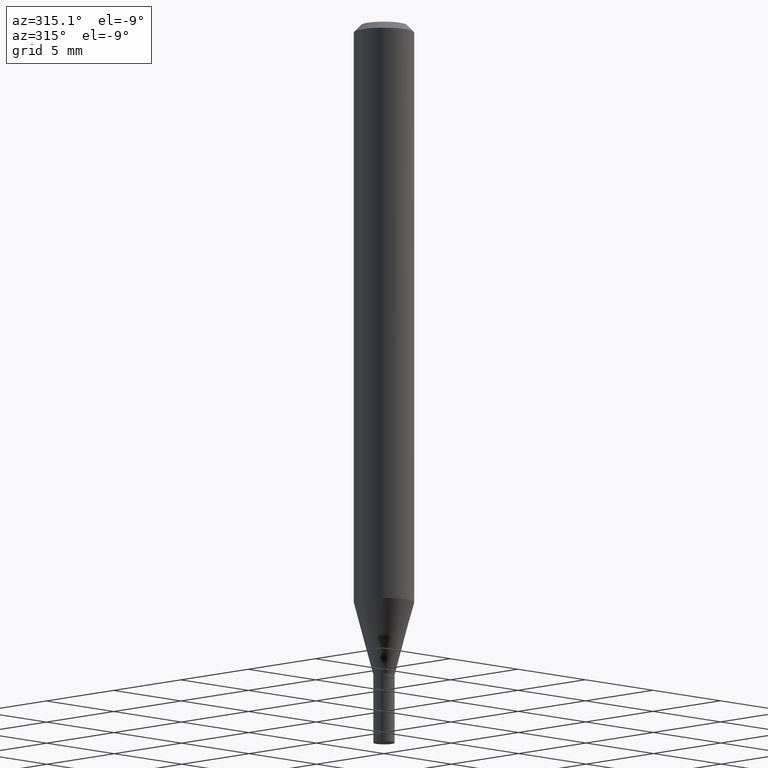
[diagram: clean part render]
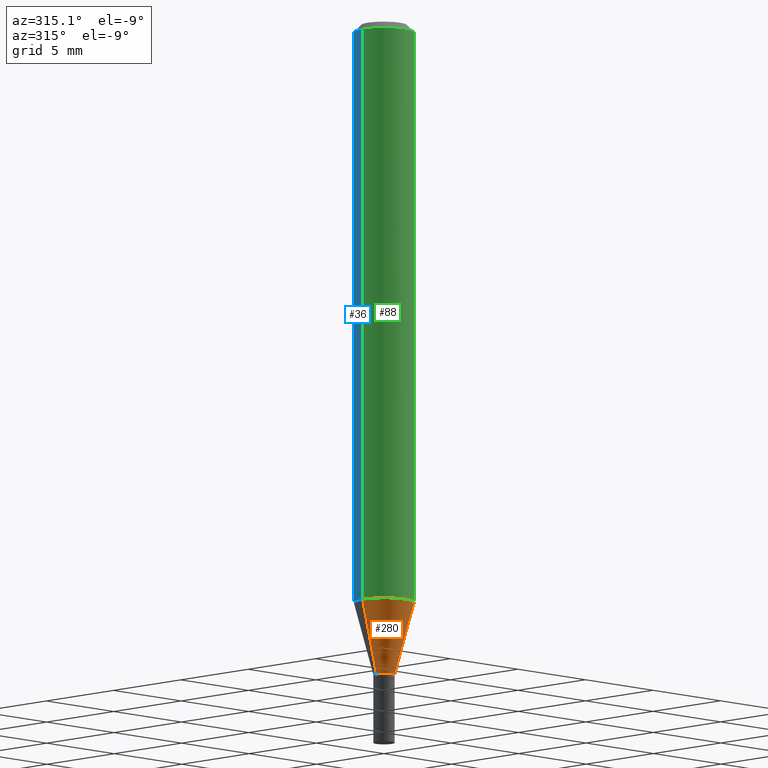
[diagram: same view with three faces highlighted in distinct colors, each labeled with its STEP entity id]
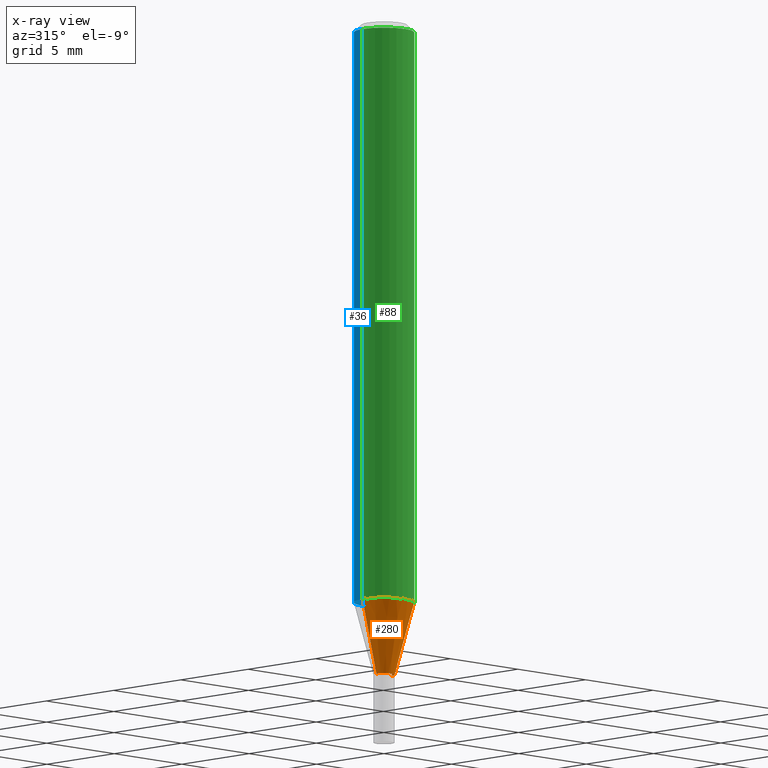
[diagram: x-ray of the same camera — body ghosted, the three highlighted faces saturated]
A machine part, auxiliary view with three faces highlighted in distinct colors.
The next image is the same camera in x-ray (body ghosted, the three faces saturated) — at least one of them is partly hidden behind the body in this view.
Their STEP definitions:

[orange] entity #280 — the highlighted conical surface has half-angle 15 deg.
#6 = CARTESIAN_POINT ( 'NONE',  ( 2.951318778562602676E-29, -4.213701035264222282E-15, -1.206851942293460711 ) ) ;
#9 = VECTOR ( 'NONE', #84, 39.37007874015747433 ) ;
#31 = DIRECTION ( 'NONE',  ( 1.000000000000000000, -6.982962677686269866E-15, 0.000000000000000000 ) ) ;
#32 = AXIS2_PLACEMENT_3D ( 'NONE', #214, #350, #31 ) ;
#38 = CIRCLE ( 'NONE', #256, 0.02199999999999992240 ) ;
#61 = ORIENTED_EDGE ( 'NONE', *, *, #210, .T. ) ;
#81 = LINE ( 'NONE', #396, #9 ) ;
#84 = DIRECTION ( 'NONE',  ( -0.2588190451025213501, 5.211531920934551042E-15, 0.9659258262890682012 ) ) ;
#86 = CARTESIAN_POINT ( 'NONE',  ( 0.02199999999999992240, -4.895056837058089278E-15, -1.358000000000000096 ) ) ;
#87 = CARTESIAN_POINT ( 'NONE',  ( 3.320946638799415978E-29, -4.741431658148991442E-15, -1.358000000000000096 ) ) ;
#92 = EDGE_LOOP ( 'NONE', ( #365, #61, #97, #343 ) ) ;
#95 = DIRECTION ( 'NONE',  ( 0.2588190451025213501, 1.565188264969621968E-15, 0.9659258262890682012 ) ) ;
#96 = EDGE_CURVE ( 'NONE', #440, #463, #437, .T. ) ;
#97 = ORIENTED_EDGE ( 'NONE', *, *, #96, .T. ) ;
#103 = DIRECTION ( 'NONE',  ( -2.445468806185136597E-29, 3.491481338843145583E-15, 1.000000000000000000 ) ) ;
#116 = VECTOR ( 'NONE', #95, 39.37007874015747433 ) ;
#143 = VERTEX_POINT ( 'NONE', #353 ) ;
#149 = CARTESIAN_POINT ( 'NONE',  ( -0.06250000000000000000, -3.769611825414159666E-15, -1.206851942293460711 ) ) ;
#153 = DIRECTION ( 'NONE',  ( 1.000000000000000000, -6.982962677686270655E-15, 0.000000000000000000 ) ) ;
#162 = CONICAL_SURFACE ( 'NONE', #32, 0.02199999999999992240, 0.2617993877991500740 ) ;
#187 = AXIS2_PLACEMENT_3D ( 'NONE', #6, #103, #153 ) ;
#189 = DIRECTION ( 'NONE',  ( -2.445468806185136597E-29, 3.491481338843145583E-15, 1.000000000000000000 ) ) ;
#203 = EDGE_CURVE ( 'NONE', #143, #262, #81, .T. ) ;
#204 = CARTESIAN_POINT ( 'NONE',  ( 0.02199999999999992240, -4.895056837058089278E-15, -1.358000000000000096 ) ) ;
#210 = EDGE_CURVE ( 'NONE', #143, #440, #38, .T. ) ;
#214 = CARTESIAN_POINT ( 'NONE',  ( 3.320946638799415978E-29, -4.741431658148991442E-15, -1.358000000000000096 ) ) ;
#256 = AXIS2_PLACEMENT_3D ( 'NONE', #87, #189, #368 ) ;
#262 = VERTEX_POINT ( 'NONE', #149 ) ;
#280 = ADVANCED_FACE ( 'NONE', ( #395 ), #162, .T. ) ;
#312 = CARTESIAN_POINT ( 'NONE',  ( 0.06250000000000000000, -4.650136202619614741E-15, -1.206851942293460711 ) ) ;
#343 = ORIENTED_EDGE ( 'NONE', *, *, #380, .F. ) ;
#350 = DIRECTION ( 'NONE',  ( -2.445468806185136597E-29, 3.491481338843145583E-15, 1.000000000000000000 ) ) ;
#353 = CARTESIAN_POINT ( 'NONE',  ( -0.02199999999999992240, -4.177362040847964858E-15, -1.358000000000000096 ) ) ;
#365 = ORIENTED_EDGE ( 'NONE', *, *, #203, .F. ) ;
#368 = DIRECTION ( 'NONE',  ( 1.000000000000000000, -6.982962677686269866E-15, 0.000000000000000000 ) ) ;
#380 = EDGE_CURVE ( 'NONE', #262, #463, #410, .T. ) ;
#395 = FACE_OUTER_BOUND ( 'NONE', #92, .T. ) ;
#396 = CARTESIAN_POINT ( 'NONE',  ( -0.02199999999999992240, -4.585112256281770051E-15, -1.358000000000000096 ) ) ;
#410 = CIRCLE ( 'NONE', #187, 0.06250000000000000000 ) ;
#437 = LINE ( 'NONE', #86, #116 ) ;
#440 = VERTEX_POINT ( 'NONE', #204 ) ;
#463 = VERTEX_POINT ( 'NONE', #312 ) ;

[blue] entity #36 — the highlighted cylindrical surface (edge-blend (fillet) strip) has radius 1.5875 mm, axis along (-0, 0, 1).
#15 = DIRECTION ( 'NONE',  ( 1.000000000000000000, -6.982962677686266711E-15, 0.000000000000000000 ) ) ;
#36 = ADVANCED_FACE ( 'NONE', ( #202 ), #168, .T. ) ;
#49 = DIRECTION ( 'NONE',  ( -2.445468806185136597E-29, 3.491481338843145583E-15, 1.000000000000000000 ) ) ;
#62 = CARTESIAN_POINT ( 'NONE',  ( 0.000000000000000000, 0.000000000000000000, 0.000000000000000000 ) ) ;
#77 = CARTESIAN_POINT ( 'NONE',  ( -0.06250000000000000000, 4.440892098500626162E-16, -3.074334431409316114E-30 ) ) ;
#114 = CARTESIAN_POINT ( 'NONE',  ( -0.06250000000000000000, -1.688947417823372262E-15, -0.01499999999999999944 ) ) ;
#118 = DIRECTION ( 'NONE',  ( 1.000000000000000000, -6.982962677686270655E-15, 0.000000000000000000 ) ) ;
#123 = DIRECTION ( 'NONE',  ( -2.445468806185136877E-29, 3.491481338843145188E-15, 1.000000000000000000 ) ) ;
#149 = CARTESIAN_POINT ( 'NONE',  ( -0.06250000000000000000, -3.769611825414159666E-15, -1.206851942293460711 ) ) ;
#155 = DIRECTION ( 'NONE',  ( -2.445468806185136877E-29, 3.491481338843145188E-15, 1.000000000000000000 ) ) ;
#159 = CARTESIAN_POINT ( 'NONE',  ( 3.668203209277705088E-31, -5.237222008264718399E-17, -0.01499999999999999944 ) ) ;
#168 = CYLINDRICAL_SURFACE ( 'NONE', #400, 0.06250000000000000000 ) ;
#172 = EDGE_CURVE ( 'NONE', #252, #375, #229, .T. ) ;
#191 = CARTESIAN_POINT ( 'NONE',  ( 0.06250000000000000000, -4.888073874380388472E-16, -0.01499999999999999944 ) ) ;
#195 = CARTESIAN_POINT ( 'NONE',  ( 2.951318778562602676E-29, -4.213701035264222282E-15, -1.206851942293460711 ) ) ;
#202 = FACE_OUTER_BOUND ( 'NONE', #417, .T. ) ;
#217 = ORIENTED_EDGE ( 'NONE', *, *, #348, .T. ) ;
#219 = LINE ( 'NONE', #77, #351 ) ;
#227 = EDGE_CURVE ( 'NONE', #463, #262, #296, .T. ) ;
#229 = CIRCLE ( 'NONE', #379, 0.06250000000000000000 ) ;
#242 = DIRECTION ( 'NONE',  ( -2.445468806185136597E-29, 3.491481338843145583E-15, 1.000000000000000000 ) ) ;
#252 = VERTEX_POINT ( 'NONE', #191 ) ;
#258 = EDGE_CURVE ( 'NONE', #463, #252, #331, .T. ) ;
#262 = VERTEX_POINT ( 'NONE', #149 ) ;
#265 = ORIENTED_EDGE ( 'NONE', *, *, #172, .F. ) ;
#266 = DIRECTION ( 'NONE',  ( -2.445468806185136597E-29, 3.491481338843145583E-15, 1.000000000000000000 ) ) ;
#296 = CIRCLE ( 'NONE', #346, 0.06250000000000000000 ) ;
#312 = CARTESIAN_POINT ( 'NONE',  ( 0.06250000000000000000, -4.650136202619614741E-15, -1.206851942293460711 ) ) ;
#331 = LINE ( 'NONE', #438, #420 ) ;
#346 = AXIS2_PLACEMENT_3D ( 'NONE', #195, #266, #118 ) ;
#348 = EDGE_CURVE ( 'NONE', #262, #375, #219, .T. ) ;
#351 = VECTOR ( 'NONE', #155, 39.37007874015748143 ) ;
#375 = VERTEX_POINT ( 'NONE', #114 ) ;
#379 = AXIS2_PLACEMENT_3D ( 'NONE', #159, #49, #15 ) ;
#382 = ORIENTED_EDGE ( 'NONE', *, *, #258, .F. ) ;
#400 = AXIS2_PLACEMENT_3D ( 'NONE', #62, #242, #442 ) ;
#417 = EDGE_LOOP ( 'NONE', ( #436, #217, #265, #382 ) ) ;
#420 = VECTOR ( 'NONE', #123, 39.37007874015748143 ) ;
#436 = ORIENTED_EDGE ( 'NONE', *, *, #227, .T. ) ;
#438 = CARTESIAN_POINT ( 'NONE',  ( 0.06250000000000000000, -4.364351673553916694E-16, 3.047610484872459871E-30 ) ) ;
#442 = DIRECTION ( 'NONE',  ( 1.000000000000000000, -6.982962677686266711E-15, 4.876176775795935793E-29 ) ) ;
#463 = VERTEX_POINT ( 'NONE', #312 ) ;

[green] entity #88 — the highlighted cylindrical surface (edge-blend (fillet) strip) has radius 1.5875 mm, axis along (-0, 0, 1).
#6 = CARTESIAN_POINT ( 'NONE',  ( 2.951318778562602676E-29, -4.213701035264222282E-15, -1.206851942293460711 ) ) ;
#39 = CARTESIAN_POINT ( 'NONE',  ( 3.668203209277705088E-31, -5.237222008264718399E-17, -0.01499999999999999944 ) ) ;
#41 = DIRECTION ( 'NONE',  ( -2.445468806185136597E-29, 3.491481338843145583E-15, 1.000000000000000000 ) ) ;
#72 = AXIS2_PLACEMENT_3D ( 'NONE', #39, #41, #183 ) ;
#77 = CARTESIAN_POINT ( 'NONE',  ( -0.06250000000000000000, 4.440892098500626162E-16, -3.074334431409316114E-30 ) ) ;
#78 = CIRCLE ( 'NONE', #72, 0.06250000000000000000 ) ;
#88 = ADVANCED_FACE ( 'NONE', ( #197 ), #372, .T. ) ;
#90 = ORIENTED_EDGE ( 'NONE', *, *, #258, .T. ) ;
#103 = DIRECTION ( 'NONE',  ( -2.445468806185136597E-29, 3.491481338843145583E-15, 1.000000000000000000 ) ) ;
#114 = CARTESIAN_POINT ( 'NONE',  ( -0.06250000000000000000, -1.688947417823372262E-15, -0.01499999999999999944 ) ) ;
#123 = DIRECTION ( 'NONE',  ( -2.445468806185136877E-29, 3.491481338843145188E-15, 1.000000000000000000 ) ) ;
#149 = CARTESIAN_POINT ( 'NONE',  ( -0.06250000000000000000, -3.769611825414159666E-15, -1.206851942293460711 ) ) ;
#152 = EDGE_CURVE ( 'NONE', #375, #252, #78, .T. ) ;
#153 = DIRECTION ( 'NONE',  ( 1.000000000000000000, -6.982962677686270655E-15, 0.000000000000000000 ) ) ;
#155 = DIRECTION ( 'NONE',  ( -2.445468806185136877E-29, 3.491481338843145188E-15, 1.000000000000000000 ) ) ;
#183 = DIRECTION ( 'NONE',  ( 1.000000000000000000, -6.982962677686266711E-15, 0.000000000000000000 ) ) ;
#187 = AXIS2_PLACEMENT_3D ( 'NONE', #6, #103, #153 ) ;
#191 = CARTESIAN_POINT ( 'NONE',  ( 0.06250000000000000000, -4.888073874380388472E-16, -0.01499999999999999944 ) ) ;
#197 = FACE_OUTER_BOUND ( 'NONE', #234, .T. ) ;
#219 = LINE ( 'NONE', #77, #351 ) ;
#234 = EDGE_LOOP ( 'NONE', ( #313, #295, #90, #334 ) ) ;
#246 = AXIS2_PLACEMENT_3D ( 'NONE', #292, #332, #444 ) ;
#252 = VERTEX_POINT ( 'NONE', #191 ) ;
#258 = EDGE_CURVE ( 'NONE', #463, #252, #331, .T. ) ;
#262 = VERTEX_POINT ( 'NONE', #149 ) ;
#292 = CARTESIAN_POINT ( 'NONE',  ( 0.000000000000000000, 0.000000000000000000, 0.000000000000000000 ) ) ;
#295 = ORIENTED_EDGE ( 'NONE', *, *, #380, .T. ) ;
#312 = CARTESIAN_POINT ( 'NONE',  ( 0.06250000000000000000, -4.650136202619614741E-15, -1.206851942293460711 ) ) ;
#313 = ORIENTED_EDGE ( 'NONE', *, *, #348, .F. ) ;
#331 = LINE ( 'NONE', #438, #420 ) ;
#332 = DIRECTION ( 'NONE',  ( -2.445468806185136597E-29, 3.491481338843145583E-15, 1.000000000000000000 ) ) ;
#334 = ORIENTED_EDGE ( 'NONE', *, *, #152, .F. ) ;
#348 = EDGE_CURVE ( 'NONE', #262, #375, #219, .T. ) ;
#351 = VECTOR ( 'NONE', #155, 39.37007874015748143 ) ;
#372 = CYLINDRICAL_SURFACE ( 'NONE', #246, 0.06250000000000000000 ) ;
#375 = VERTEX_POINT ( 'NONE', #114 ) ;
#380 = EDGE_CURVE ( 'NONE', #262, #463, #410, .T. ) ;
#410 = CIRCLE ( 'NONE', #187, 0.06250000000000000000 ) ;
#420 = VECTOR ( 'NONE', #123, 39.37007874015748143 ) ;
#438 = CARTESIAN_POINT ( 'NONE',  ( 0.06250000000000000000, -4.364351673553916694E-16, 3.047610484872459871E-30 ) ) ;
#444 = DIRECTION ( 'NONE',  ( 1.000000000000000000, -6.982962677686266711E-15, 4.876176775795935793E-29 ) ) ;
#463 = VERTEX_POINT ( 'NONE', #312 ) ;